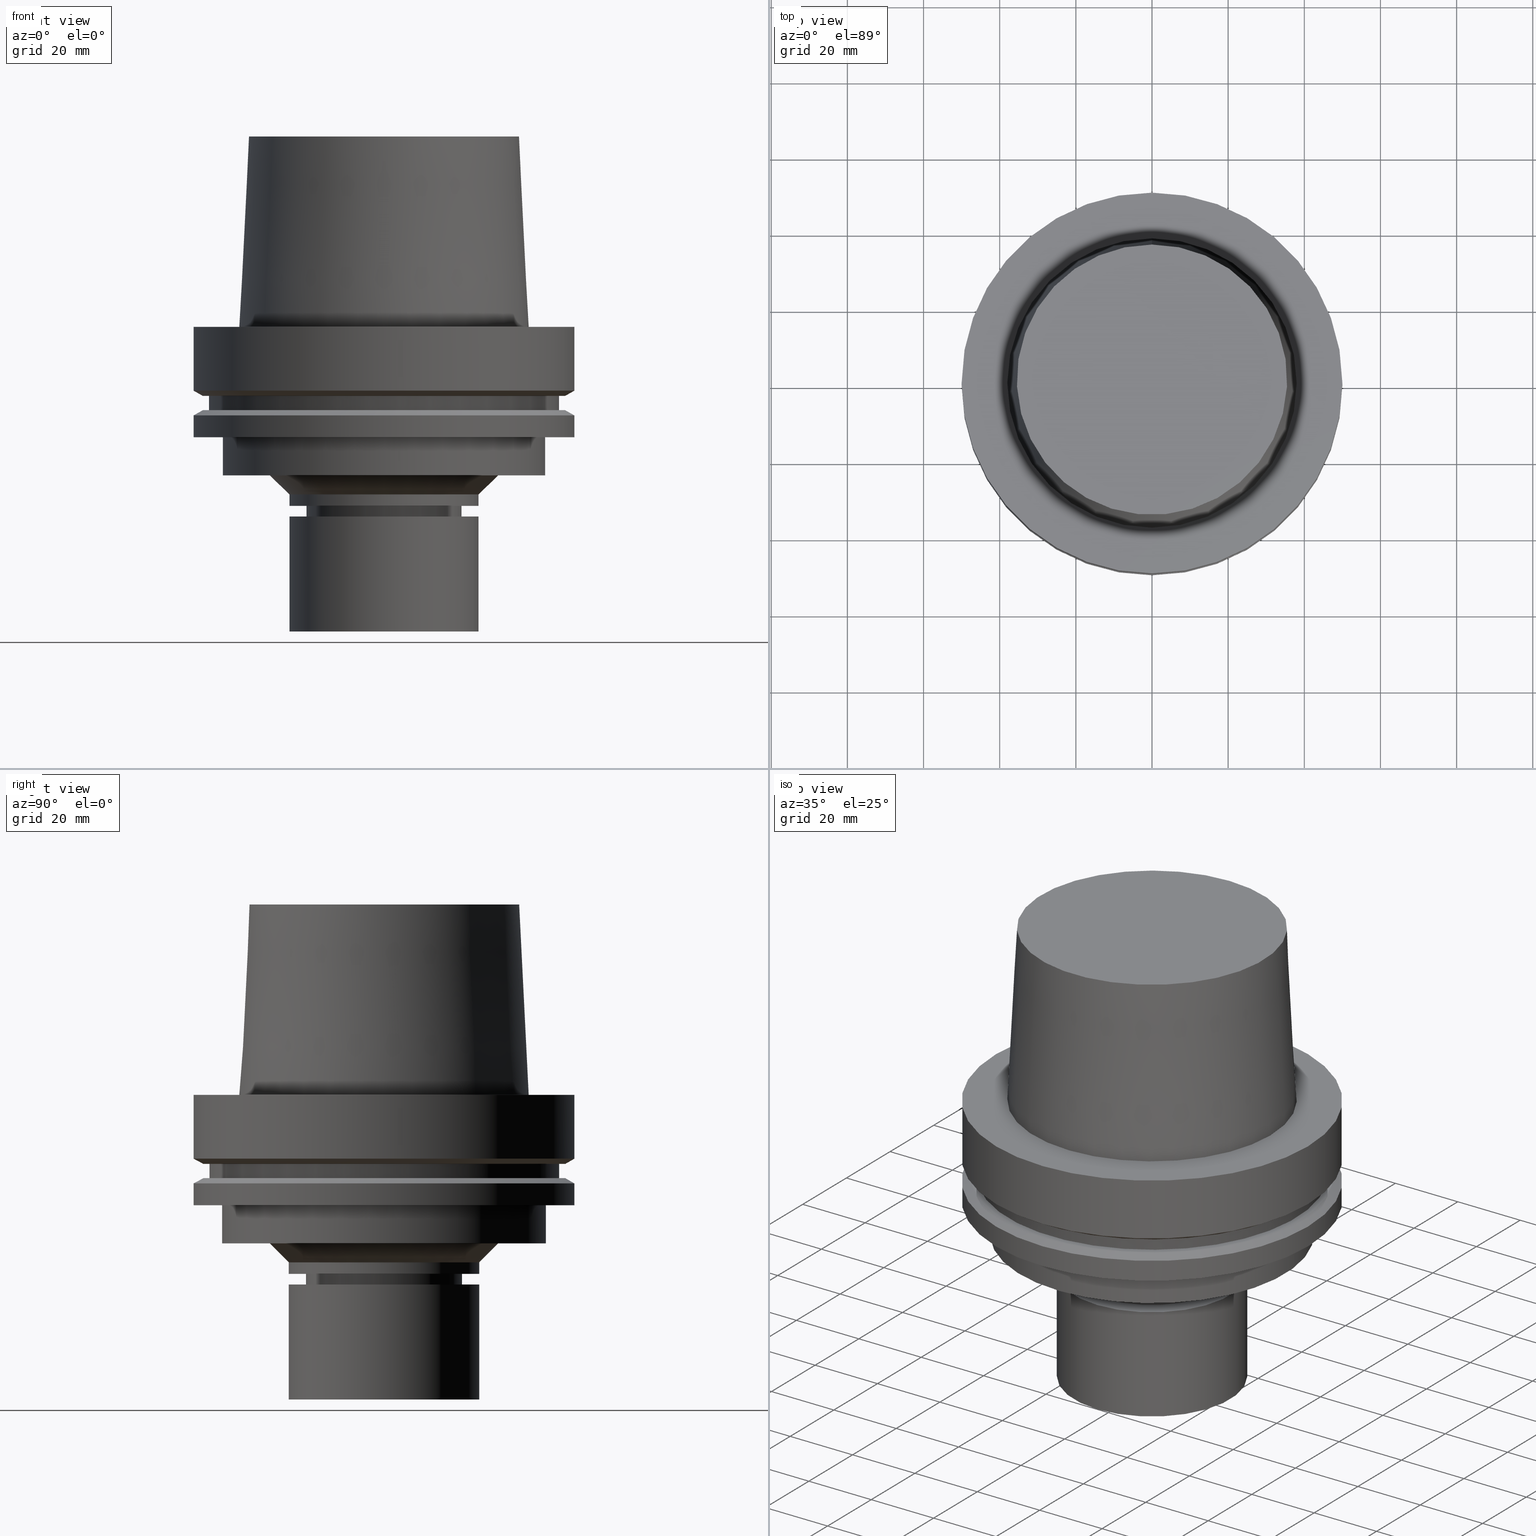
[diagram: canonical four-view strip — front | top / right | iso, engineering-drawing reading convention]
A machine part, canonical four-view strip (front | top / right | iso — engineering-drawing reading convention). The complete STEP part file that produces these views, byte-faithful:
ISO-10303-21;
HEADER;
FILE_DESCRIPTION((''),'1');
FILE_NAME('U:/Translate/02_3D_Field-HP\X2\FF71FF6FFF8CFF9F5916\X0\2013/02_Step_Field-HP\X2\FF71FF6FFF8CFF9F5916\X0\2013/HSK-A100-MEGAER32-80NL.stp','2016-06-22T02:47:27',(''),(''),'Spatial Interop R21 SP3','Kubotek KeyCreator 2011 V10.0.2 (22737)',' ');
FILE_SCHEMA(('automotive_design'));
ENDSEC;
DATA;
#1=MECHANICAL_DESIGN_GEOMETRIC_PRESENTATION_REPRESENTATION(' ',(#14,#15,#16,#17,#18,#19,#20,#21,#22,#23,#24,#25,#26,#27,#28,#29,#30,#31,#32,#33,#34,#35,#36,#37,#38,#39,#40,#41,#42,#43,#44,#45,#46,#47,#48,#49,#50,#51,#52,#53,#54,#55,#56,#57,#58,#59,#60,#61),#10);
#2=PRODUCT_DEFINITION_CONTEXT('',#62,'design');
#3=APPLICATION_PROTOCOL_DEFINITION('INTERNATIONAL STANDARD','automotive_design',1994,#62);
#4=PRODUCT_CATEGORY_RELATIONSHIP('NONE','NONE',#63,#64);
#5=SHAPE_DEFINITION_REPRESENTATION(#65,#66);
#6=PRODUCT_DEFINITION_CONTEXT('',#67,'design');
#7=APPLICATION_PROTOCOL_DEFINITION('INTERNATIONAL STANDARD','automotive_design',1994,#67);
#8=PRODUCT_CATEGORY_RELATIONSHIP('NONE','NONE',#68,#69);
#9=SHAPE_DEFINITION_REPRESENTATION(#70,#71);
#10= (GEOMETRIC_REPRESENTATION_CONTEXT(3)GLOBAL_UNCERTAINTY_ASSIGNED_CONTEXT((#74))GLOBAL_UNIT_ASSIGNED_CONTEXT((#76,#77,#78))REPRESENTATION_CONTEXT('NONE','WORKSPACE'));
#14=STYLED_ITEM('',(#80),#81);
#15=STYLED_ITEM('',(#82,#83),#84);
#16=STYLED_ITEM('',(#85,#86),#87);
#17=STYLED_ITEM('',(#88,#89),#90);
#18=STYLED_ITEM('',(#91),#92);
#19=STYLED_ITEM('',(#93,#94),#95);
#20=STYLED_ITEM('',(#96),#97);
#21=STYLED_ITEM('',(#98),#99);
#22=STYLED_ITEM('',(#100,#101),#102);
#23=STYLED_ITEM('',(#103,#104),#105);
#24=STYLED_ITEM('',(#106,#107),#108);
#25=STYLED_ITEM('',(#109,#110),#111);
#26=STYLED_ITEM('',(#112,#113),#114);
#27=STYLED_ITEM('',(#115),#116);
#28=STYLED_ITEM('',(#117),#118);
#29=STYLED_ITEM('',(#119),#120);
#30=STYLED_ITEM('',(#121,#122),#123);
#31=STYLED_ITEM('',(#124),#125);
#32=STYLED_ITEM('',(#126,#127),#128);
#33=STYLED_ITEM('',(#129,#130),#131);
#34=STYLED_ITEM('',(#132,#133),#134);
#35=STYLED_ITEM('',(#135,#136),#137);
#36=STYLED_ITEM('',(#138,#139),#140);
#37=STYLED_ITEM('',(#141,#142),#143);
#38=STYLED_ITEM('',(#144),#145);
#39=STYLED_ITEM('',(#146),#147);
#40=STYLED_ITEM('',(#148),#149);
#41=STYLED_ITEM('',(#150,#151),#152);
#42=STYLED_ITEM('',(#153),#154);
#43=STYLED_ITEM('',(#155,#156),#157);
#44=STYLED_ITEM('',(#158),#159);
#45=STYLED_ITEM('',(#160),#161);
#46=STYLED_ITEM('',(#162),#163);
#47=STYLED_ITEM('',(#164,#165),#166);
#48=STYLED_ITEM('',(#167),#168);
#49=STYLED_ITEM('',(#169),#170);
#50=STYLED_ITEM('',(#171,#172),#173);
#51=STYLED_ITEM('',(#174),#175);
#52=STYLED_ITEM('',(#176,#177),#178);
#53=STYLED_ITEM('',(#179,#180),#181);
#54=STYLED_ITEM('',(#182,#183),#184);
#55=STYLED_ITEM('',(#185,#186),#187);
#56=STYLED_ITEM('',(#188),#189);
#57=STYLED_ITEM('',(#190),#191);
#58=STYLED_ITEM('',(#192,#193),#194);
#59=STYLED_ITEM('',(#195,#196),#197);
#60=STYLED_ITEM('',(#198),#199);
#61=STYLED_ITEM('',(#200),#201);
#62=APPLICATION_CONTEXT(' ');
#63=PRODUCT_CATEGORY('part','NONE');
#64=PRODUCT_RELATED_PRODUCT_CATEGORY('detail',' ',(#202));
#65=PRODUCT_DEFINITION_SHAPE('NONE','NONE',#203);
#66=ADVANCED_BREP_SHAPE_REPRESENTATION('Unnamed[1]',(#108,#204),#10);
#67=APPLICATION_CONTEXT(' ');
#68=PRODUCT_CATEGORY('part','NONE');
#69=PRODUCT_RELATED_PRODUCT_CATEGORY('detail',' ',(#205));
#70=PRODUCT_DEFINITION_SHAPE('NONE','NONE',#206);
#71=ADVANCED_BREP_SHAPE_REPRESENTATION('Unnamed[1]',(#90,#207),#10);
#74=UNCERTAINTY_MEASURE_WITH_UNIT(LENGTH_MEASURE(1.0E-006),#76,'','');
#76= (CONVERSION_BASED_UNIT('MILLIMETRE',#210)LENGTH_UNIT()NAMED_UNIT(#213));
#77= (NAMED_UNIT(#215)PLANE_ANGLE_UNIT()SI_UNIT($,.RADIAN.));
#78= (NAMED_UNIT(#215)SOLID_ANGLE_UNIT()SI_UNIT($,.STERADIAN.));
#80=PRESENTATION_STYLE_ASSIGNMENT((#221));
#81=EDGE_CURVE('Unnamed[1]',#222,#222,#223,.T.);
#82=PRESENTATION_STYLE_ASSIGNMENT((#224));
#83=PRESENTATION_STYLE_ASSIGNMENT((#225));
#84=ADVANCED_FACE('Unnamed[1]',(#226),#227,.T.);
#85=PRESENTATION_STYLE_ASSIGNMENT((#228));
#86=PRESENTATION_STYLE_ASSIGNMENT((#229));
#87=ADVANCED_FACE('Unnamed[1]',(#230),#231,.T.);
#88=PRESENTATION_STYLE_ASSIGNMENT((#232));
#89=PRESENTATION_STYLE_ASSIGNMENT((#233));
#90=MANIFOLD_SOLID_BREP('Unnamed[1]',#234);
#91=PRESENTATION_STYLE_ASSIGNMENT((#235));
#92=EDGE_CURVE('Unnamed[1]',#236,#236,#237,.T.);
#93=PRESENTATION_STYLE_ASSIGNMENT((#238));
#94=PRESENTATION_STYLE_ASSIGNMENT((#239));
#95=ADVANCED_FACE('Unnamed[1]',(#240,#241),#242,.T.);
#96=PRESENTATION_STYLE_ASSIGNMENT((#243));
#97=EDGE_CURVE('Unnamed[1]',#244,#244,#245,.T.);
#98=PRESENTATION_STYLE_ASSIGNMENT((#246));
#99=EDGE_CURVE('Unnamed[1]',#247,#247,#248,.T.);
#100=PRESENTATION_STYLE_ASSIGNMENT((#249));
#101=PRESENTATION_STYLE_ASSIGNMENT((#250));
#102=ADVANCED_FACE('Unnamed[1]',(#251),#252,.T.);
#103=PRESENTATION_STYLE_ASSIGNMENT((#253));
#104=PRESENTATION_STYLE_ASSIGNMENT((#254));
#105=ADVANCED_FACE('Unnamed[1]',(#255,#256),#257,.T.);
#106=PRESENTATION_STYLE_ASSIGNMENT((#258));
#107=PRESENTATION_STYLE_ASSIGNMENT((#259));
#108=MANIFOLD_SOLID_BREP('Unnamed[1]',#260);
#109=PRESENTATION_STYLE_ASSIGNMENT((#261));
#110=PRESENTATION_STYLE_ASSIGNMENT((#262));
#111=ADVANCED_FACE('Unnamed[1]',(#263),#264,.T.);
#112=PRESENTATION_STYLE_ASSIGNMENT((#265));
#113=PRESENTATION_STYLE_ASSIGNMENT((#266));
#114=ADVANCED_FACE('Unnamed[1]',(#267,#268),#269,.T.);
#115=PRESENTATION_STYLE_ASSIGNMENT((#270));
#116=EDGE_CURVE('Unnamed[1]',#271,#271,#272,.T.);
#117=PRESENTATION_STYLE_ASSIGNMENT((#273));
#118=EDGE_CURVE('Unnamed[1]',#274,#274,#275,.T.);
#119=PRESENTATION_STYLE_ASSIGNMENT((#276));
#120=EDGE_CURVE('Unnamed[1]',#277,#277,#278,.T.);
#121=PRESENTATION_STYLE_ASSIGNMENT((#279));
#122=PRESENTATION_STYLE_ASSIGNMENT((#280));
#123=ADVANCED_FACE('Unnamed[1]',(#281,#282),#283,.T.);
#124=PRESENTATION_STYLE_ASSIGNMENT((#284));
#125=EDGE_CURVE('Unnamed[1]',#285,#285,#286,.T.);
#126=PRESENTATION_STYLE_ASSIGNMENT((#287));
#127=PRESENTATION_STYLE_ASSIGNMENT((#288));
#128=ADVANCED_FACE('Unnamed[1]',(#289,#290),#291,.T.);
#129=PRESENTATION_STYLE_ASSIGNMENT((#292));
#130=PRESENTATION_STYLE_ASSIGNMENT((#293));
#131=ADVANCED_FACE('Unnamed[1]',(#294,#295),#296,.T.);
#132=PRESENTATION_STYLE_ASSIGNMENT((#297));
#133=PRESENTATION_STYLE_ASSIGNMENT((#298));
#134=ADVANCED_FACE('Unnamed[1]',(#299,#300),#301,.T.);
#135=PRESENTATION_STYLE_ASSIGNMENT((#302));
#136=PRESENTATION_STYLE_ASSIGNMENT((#303));
#137=ADVANCED_FACE('Unnamed[1]',(#304,#305),#306,.T.);
#138=PRESENTATION_STYLE_ASSIGNMENT((#307));
#139=PRESENTATION_STYLE_ASSIGNMENT((#308));
#140=ADVANCED_FACE('Unnamed[1]',(#309,#310),#311,.T.);
#141=PRESENTATION_STYLE_ASSIGNMENT((#312));
#142=PRESENTATION_STYLE_ASSIGNMENT((#313));
#143=ADVANCED_FACE('Unnamed[1]',(#314,#315),#316,.T.);
#144=PRESENTATION_STYLE_ASSIGNMENT((#317));
#145=EDGE_CURVE('Unnamed[1]',#318,#318,#319,.T.);
#146=PRESENTATION_STYLE_ASSIGNMENT((#320));
#147=EDGE_CURVE('Unnamed[1]',#321,#321,#322,.T.);
#148=PRESENTATION_STYLE_ASSIGNMENT((#323));
#149=EDGE_CURVE('Unnamed[1]',#324,#324,#325,.T.);
#150=PRESENTATION_STYLE_ASSIGNMENT((#326));
#151=PRESENTATION_STYLE_ASSIGNMENT((#327));
#152=ADVANCED_FACE('Unnamed[1]',(#328,#329),#330,.T.);
#153=PRESENTATION_STYLE_ASSIGNMENT((#331));
#154=EDGE_CURVE('Unnamed[1]',#332,#332,#333,.T.);
#155=PRESENTATION_STYLE_ASSIGNMENT((#334));
#156=PRESENTATION_STYLE_ASSIGNMENT((#335));
#157=ADVANCED_FACE('Unnamed[1]',(#336,#337),#338,.T.);
#158=PRESENTATION_STYLE_ASSIGNMENT((#339));
#159=EDGE_CURVE('Unnamed[1]',#340,#340,#341,.T.);
#160=PRESENTATION_STYLE_ASSIGNMENT((#342));
#161=EDGE_CURVE('Unnamed[1]',#343,#343,#344,.T.);
#162=PRESENTATION_STYLE_ASSIGNMENT((#345));
#163=EDGE_CURVE('Unnamed[1]',#346,#346,#347,.T.);
#164=PRESENTATION_STYLE_ASSIGNMENT((#348));
#165=PRESENTATION_STYLE_ASSIGNMENT((#349));
#166=ADVANCED_FACE('Unnamed[1]',(#350,#351),#352,.T.);
#167=PRESENTATION_STYLE_ASSIGNMENT((#353));
#168=EDGE_CURVE('Unnamed[1]',#354,#354,#355,.T.);
#169=PRESENTATION_STYLE_ASSIGNMENT((#356));
#170=EDGE_CURVE('Unnamed[1]',#357,#357,#358,.T.);
#171=PRESENTATION_STYLE_ASSIGNMENT((#359));
#172=PRESENTATION_STYLE_ASSIGNMENT((#360));
#173=ADVANCED_FACE('Unnamed[1]',(#361,#362),#363,.T.);
#174=PRESENTATION_STYLE_ASSIGNMENT((#364));
#175=EDGE_CURVE('Unnamed[1]',#365,#365,#366,.T.);
#176=PRESENTATION_STYLE_ASSIGNMENT((#367));
#177=PRESENTATION_STYLE_ASSIGNMENT((#368));
#178=ADVANCED_FACE('Unnamed[1]',(#369,#370),#371,.T.);
#179=PRESENTATION_STYLE_ASSIGNMENT((#372));
#180=PRESENTATION_STYLE_ASSIGNMENT((#373));
#181=ADVANCED_FACE('Unnamed[1]',(#374,#375),#376,.T.);
#182=PRESENTATION_STYLE_ASSIGNMENT((#377));
#183=PRESENTATION_STYLE_ASSIGNMENT((#378));
#184=ADVANCED_FACE('Unnamed[1]',(#379,#380),#381,.T.);
#185=PRESENTATION_STYLE_ASSIGNMENT((#382));
#186=PRESENTATION_STYLE_ASSIGNMENT((#383));
#187=ADVANCED_FACE('Unnamed[1]',(#384,#385),#386,.T.);
#188=PRESENTATION_STYLE_ASSIGNMENT((#387));
#189=EDGE_CURVE('Unnamed[1]',#388,#388,#389,.T.);
#190=PRESENTATION_STYLE_ASSIGNMENT((#390));
#191=EDGE_CURVE('Unnamed[1]',#391,#391,#392,.T.);
#192=PRESENTATION_STYLE_ASSIGNMENT((#393));
#193=PRESENTATION_STYLE_ASSIGNMENT((#394));
#194=ADVANCED_FACE('Unnamed[1]',(#395,#396),#397,.T.);
#195=PRESENTATION_STYLE_ASSIGNMENT((#398));
#196=PRESENTATION_STYLE_ASSIGNMENT((#399));
#197=ADVANCED_FACE('Unnamed[1]',(#400,#401),#402,.T.);
#198=PRESENTATION_STYLE_ASSIGNMENT((#403));
#199=EDGE_CURVE('Unnamed[1]',#404,#404,#405,.T.);
#200=PRESENTATION_STYLE_ASSIGNMENT((#406));
#201=EDGE_CURVE('Unnamed[1]',#407,#407,#408,.T.);
#202=PRODUCT('Unnamed[1]','Unnamed[1]','PART-Unnamed[1]-DESC',(#409));
#203=PRODUCT_DEFINITION('NONE','NONE',#410,#2);
#204=AXIS2_PLACEMENT_3D('',#411,#412,#413);
#205=PRODUCT('Unnamed[1]','Unnamed[1]','PART-Unnamed[1]-DESC',(#414));
#206=PRODUCT_DEFINITION('NONE','NONE',#415,#6);
#207=AXIS2_PLACEMENT_3D('',#416,#417,#418);
#210=LENGTH_MEASURE_WITH_UNIT(LENGTH_MEASURE(1.0),#419);
#213=DIMENSIONAL_EXPONENTS(1.0,0.0,0.0,0.0,0.0,0.0,0.0);
#215=DIMENSIONAL_EXPONENTS(0.0,0.0,0.0,0.0,0.0,0.0,0.0);
#221=CURVE_STYLE('',#420,POSITIVE_LENGTH_MEASURE(1000.0),#421);
#222=VERTEX_POINT('',#422);
#223=CIRCLE('',#423,25.0);
#224=SURFACE_STYLE_USAGE(.BOTH.,#424);
#225=CURVE_STYLE('',#425,POSITIVE_LENGTH_MEASURE(1000.0),#426);
#226=FACE_OUTER_BOUND('',#427,.T.);
#227=PLANE('',#428);
#228=SURFACE_STYLE_USAGE(.BOTH.,#429);
#229=CURVE_STYLE('',#430,POSITIVE_LENGTH_MEASURE(1000.0),#431);
#230=FACE_OUTER_BOUND('',#432,.T.);
#231=PLANE('',#433);
#232=SURFACE_STYLE_USAGE(.BOTH.,#434);
#233=CURVE_STYLE('',#435,POSITIVE_LENGTH_MEASURE(1000.0),#436);
#234=CLOSED_SHELL('',(#111,#84,#173));
#235=CURVE_STYLE('',#437,POSITIVE_LENGTH_MEASURE(1000.0),#438);
#236=VERTEX_POINT('',#439);
#237=CIRCLE('',#440,18.8999999999997);
#238=SURFACE_STYLE_USAGE(.BOTH.,#441);
#239=CURVE_STYLE('',#442,POSITIVE_LENGTH_MEASURE(1000.0),#443);
#240=FACE_BOUND('',#444,.T.);
#241=FACE_BOUND('',#445,.T.);
#242=CYLINDRICAL_SURFACE('',#446,20.4999999999961);
#243=CURVE_STYLE('',#447,POSITIVE_LENGTH_MEASURE(1000.0),#448);
#244=VERTEX_POINT('',#449);
#245=CIRCLE('',#450,25.0);
#246=CURVE_STYLE('',#451,POSITIVE_LENGTH_MEASURE(1000.0),#452);
#247=VERTEX_POINT('',#453);
#248=CIRCLE('',#454,20.0000000000001);
#249=SURFACE_STYLE_USAGE(.BOTH.,#455);
#250=CURVE_STYLE('',#456,POSITIVE_LENGTH_MEASURE(1000.0),#457);
#251=FACE_OUTER_BOUND('',#458,.T.);
#252=PLANE('',#459);
#253=SURFACE_STYLE_USAGE(.BOTH.,#460);
#254=CURVE_STYLE('',#461,POSITIVE_LENGTH_MEASURE(1000.0),#462);
#255=FACE_BOUND('',#463,.T.);
#256=FACE_BOUND('',#464,.T.);
#257=CYLINDRICAL_SURFACE('',#465,50.0);
#258=SURFACE_STYLE_USAGE(.BOTH.,#466);
#259=CURVE_STYLE('',#467,POSITIVE_LENGTH_MEASURE(1000.0),#468);
#260=CLOSED_SHELL('',(#102,#128,#178,#114,#184,#152,#137,#157,#140,#105,#123,#194,#143,#131,#166,#134,#95,#181,#187,#197,#87));
#261=SURFACE_STYLE_USAGE(.BOTH.,#469);
#262=CURVE_STYLE('',#470,POSITIVE_LENGTH_MEASURE(1000.0),#471);
#263=FACE_OUTER_BOUND('',#472,.T.);
#264=PLANE('',#473);
#265=SURFACE_STYLE_USAGE(.BOTH.,#474);
#266=CURVE_STYLE('',#475,POSITIVE_LENGTH_MEASURE(1000.0),#476);
#267=FACE_BOUND('',#477,.T.);
#268=FACE_BOUND('',#478,.T.);
#269=CYLINDRICAL_SURFACE('',#479,50.0);
#270=CURVE_STYLE('',#480,POSITIVE_LENGTH_MEASURE(1000.0),#481);
#271=VERTEX_POINT('',#482);
#272=CIRCLE('',#483,46.0);
#273=CURVE_STYLE('',#484,POSITIVE_LENGTH_MEASURE(1000.0),#485);
#274=VERTEX_POINT('',#486);
#275=CIRCLE('',#487,37.9999999999349);
#276=CURVE_STYLE('',#488,POSITIVE_LENGTH_MEASURE(1000.0),#489);
#277=VERTEX_POINT('',#490);
#278=CIRCLE('',#491,20.0);
#279=SURFACE_STYLE_USAGE(.BOTH.,#492);
#280=CURVE_STYLE('',#493,POSITIVE_LENGTH_MEASURE(1000.0),#494);
#281=FACE_BOUND('',#495,.T.);
#282=FACE_OUTER_BOUND('',#496,.T.);
#283=PLANE('',#497);
#284=CURVE_STYLE('',#498,POSITIVE_LENGTH_MEASURE(1000.0),#499);
#285=VERTEX_POINT('',#500);
#286=CIRCLE('',#501,46.0);
#287=SURFACE_STYLE_USAGE(.BOTH.,#502);
#288=CURVE_STYLE('',#503,POSITIVE_LENGTH_MEASURE(1000.0),#504);
#289=FACE_BOUND('',#505,.T.);
#290=FACE_BOUND('',#506,.T.);
#291=CONICAL_SURFACE('',#507,36.7500000007484,0.0499583956894843);
#292=SURFACE_STYLE_USAGE(.BOTH.,#508);
#293=CURVE_STYLE('',#509,POSITIVE_LENGTH_MEASURE(1000.0),#510);
#294=FACE_BOUND('',#511,.T.);
#295=FACE_BOUND('',#512,.T.);
#296=CONICAL_SURFACE('',#513,27.5,0.785398163397448);
#297=SURFACE_STYLE_USAGE(.BOTH.,#514);
#298=CURVE_STYLE('',#515,POSITIVE_LENGTH_MEASURE(1000.0),#516);
#299=FACE_BOUND('',#517,.T.);
#300=FACE_OUTER_BOUND('',#518,.T.);
#301=PLANE('',#519);
#302=SURFACE_STYLE_USAGE(.BOTH.,#520);
#303=CURVE_STYLE('',#521,POSITIVE_LENGTH_MEASURE(1000.0),#522);
#304=FACE_BOUND('',#523,.T.);
#305=FACE_BOUND('',#524,.T.);
#306=CYLINDRICAL_SURFACE('',#525,46.0);
#307=SURFACE_STYLE_USAGE(.BOTH.,#526);
#308=CURVE_STYLE('',#527,POSITIVE_LENGTH_MEASURE(1000.0),#528);
#309=FACE_BOUND('',#529,.T.);
#310=FACE_BOUND('',#530,.T.);
#311=CONICAL_SURFACE('',#531,48.81129763,1.04719755328238);
#312=SURFACE_STYLE_USAGE(.BOTH.,#532);
#313=CURVE_STYLE('',#533,POSITIVE_LENGTH_MEASURE(1000.0),#534);
#314=FACE_BOUND('',#535,.T.);
#315=FACE_OUTER_BOUND('',#536,.T.);
#316=PLANE('',#537);
#317=CURVE_STYLE('',#538,POSITIVE_LENGTH_MEASURE(1000.0),#539);
#318=VERTEX_POINT('',#540);
#319=CIRCLE('',#541,35.5000000015618);
#320=CURVE_STYLE('',#542,POSITIVE_LENGTH_MEASURE(1000.0),#543);
#321=VERTEX_POINT('',#544);
#322=CIRCLE('',#545,47.62259526);
#323=CURVE_STYLE('',#546,POSITIVE_LENGTH_MEASURE(1000.0),#547);
#324=VERTEX_POINT('',#548);
#325=CIRCLE('',#549,50.0);
#326=SURFACE_STYLE_USAGE(.BOTH.,#550);
#327=CURVE_STYLE('',#551,POSITIVE_LENGTH_MEASURE(1000.0),#552);
#328=FACE_BOUND('',#553,.T.);
#329=FACE_OUTER_BOUND('',#554,.T.);
#330=PLANE('',#555);
#331=CURVE_STYLE('',#556,POSITIVE_LENGTH_MEASURE(1000.0),#557);
#332=VERTEX_POINT('',#558);
#333=CIRCLE('',#559,20.4999999999911);
#334=SURFACE_STYLE_USAGE(.BOTH.,#560);
#335=CURVE_STYLE('',#561,POSITIVE_LENGTH_MEASURE(1000.0),#562);
#336=FACE_OUTER_BOUND('',#563,.T.);
#337=FACE_BOUND('',#564,.T.);
#338=PLANE('',#565);
#339=CURVE_STYLE('',#566,POSITIVE_LENGTH_MEASURE(1000.0),#567);
#340=VERTEX_POINT('',#568);
#341=CIRCLE('',#569,47.62259526);
#342=CURVE_STYLE('',#570,POSITIVE_LENGTH_MEASURE(1000.0),#571);
#343=VERTEX_POINT('',#572);
#344=CIRCLE('',#573,20.5000000000012);
#345=CURVE_STYLE('',#574,POSITIVE_LENGTH_MEASURE(1000.0),#575);
#346=VERTEX_POINT('',#576);
#347=CIRCLE('',#577,50.0);
#348=SURFACE_STYLE_USAGE(.BOTH.,#578);
#349=CURVE_STYLE('',#579,POSITIVE_LENGTH_MEASURE(1000.0),#580);
#350=FACE_BOUND('',#581,.T.);
#351=FACE_BOUND('',#582,.T.);
#352=CYLINDRICAL_SURFACE('',#583,25.0);
#353=CURVE_STYLE('',#584,POSITIVE_LENGTH_MEASURE(1000.0),#585);
#354=VERTEX_POINT('',#586);
#355=CIRCLE('',#587,42.5);
#356=CURVE_STYLE('',#588,POSITIVE_LENGTH_MEASURE(1000.0),#589);
#357=VERTEX_POINT('',#590);
#358=CIRCLE('',#591,25.0);
#359=SURFACE_STYLE_USAGE(.BOTH.,#592);
#360=CURVE_STYLE('',#593,POSITIVE_LENGTH_MEASURE(1000.0),#594);
#361=FACE_BOUND('',#595,.T.);
#362=FACE_BOUND('',#596,.T.);
#363=CYLINDRICAL_SURFACE('',#597,25.0);
#364=CURVE_STYLE('',#598,POSITIVE_LENGTH_MEASURE(1000.0),#599);
#365=VERTEX_POINT('',#600);
#366=CIRCLE('',#601,42.5);
#367=SURFACE_STYLE_USAGE(.BOTH.,#602);
#368=CURVE_STYLE('',#603,POSITIVE_LENGTH_MEASURE(1000.0),#604);
#369=FACE_OUTER_BOUND('',#605,.T.);
#370=FACE_BOUND('',#606,.T.);
#371=PLANE('',#607);
#372=SURFACE_STYLE_USAGE(.BOTH.,#608);
#373=CURVE_STYLE('',#609,POSITIVE_LENGTH_MEASURE(1000.0),#610);
#374=FACE_BOUND('',#611,.T.);
#375=FACE_BOUND('',#612,.T.);
#376=CONICAL_SURFACE('',#613,20.2500000000006,0.766162649696587);
#377=SURFACE_STYLE_USAGE(.BOTH.,#614);
#378=CURVE_STYLE('',#615,POSITIVE_LENGTH_MEASURE(1000.0),#616);
#379=FACE_BOUND('',#617,.T.);
#380=FACE_BOUND('',#618,.T.);
#381=CONICAL_SURFACE('',#619,48.81129763,1.04719755328238);
#382=SURFACE_STYLE_USAGE(.BOTH.,#620);
#383=CURVE_STYLE('',#621,POSITIVE_LENGTH_MEASURE(1000.0),#622);
#384=FACE_BOUND('',#623,.T.);
#385=FACE_BOUND('',#624,.T.);
#386=CYLINDRICAL_SURFACE('',#625,20.0);
#387=CURVE_STYLE('',#626,POSITIVE_LENGTH_MEASURE(1000.0),#627);
#388=VERTEX_POINT('',#628);
#389=CIRCLE('',#629,25.0);
#390=CURVE_STYLE('',#630,POSITIVE_LENGTH_MEASURE(1000.0),#631);
#391=VERTEX_POINT('',#632);
#392=CIRCLE('',#633,50.0);
#393=SURFACE_STYLE_USAGE(.BOTH.,#634);
#394=CURVE_STYLE('',#635,POSITIVE_LENGTH_MEASURE(1000.0),#636);
#395=FACE_BOUND('',#637,.T.);
#396=FACE_BOUND('',#638,.T.);
#397=CYLINDRICAL_SURFACE('',#639,42.5);
#398=SURFACE_STYLE_USAGE(.BOTH.,#640);
#399=CURVE_STYLE('',#641,POSITIVE_LENGTH_MEASURE(1000.0),#642);
#400=FACE_BOUND('',#643,.T.);
#401=FACE_BOUND('',#644,.T.);
#402=CONICAL_SURFACE('',#645,19.4499999999999,0.523598775598222);
#403=CURVE_STYLE('',#646,POSITIVE_LENGTH_MEASURE(1000.0),#647);
#404=VERTEX_POINT('',#648);
#405=CIRCLE('',#649,50.0);
#406=CURVE_STYLE('',#650,POSITIVE_LENGTH_MEASURE(1000.0),#651);
#407=VERTEX_POINT('',#652);
#408=CIRCLE('',#653,30.0);
#409=PRODUCT_CONTEXT('',#62,'mechanical');
#410=PRODUCT_DEFINITION_FORMATION_WITH_SPECIFIED_SOURCE(' ','NONE',#202,.NOT_KNOWN.);
#411=CARTESIAN_POINT('',(0.0,0.0,0.0));
#412=DIRECTION('',(0.0,0.0,1.0));
#413=DIRECTION('',(1.0,0.0,0.0));
#414=PRODUCT_CONTEXT('',#67,'mechanical');
#415=PRODUCT_DEFINITION_FORMATION_WITH_SPECIFIED_SOURCE(' ','NONE',#205,.NOT_KNOWN.);
#416=CARTESIAN_POINT('',(0.0,0.0,0.0));
#417=DIRECTION('',(0.0,0.0,1.0));
#418=DIRECTION('',(1.0,0.0,0.0));
#419= (NAMED_UNIT(#213)LENGTH_UNIT()SI_UNIT(.MILLI.,.METRE.));
#420=DRAUGHTING_PRE_DEFINED_CURVE_FONT('continuous');
#421=COLOUR_RGB('',0.0,1.0,0.0);
#422=CARTESIAN_POINT('',(4.89858719658941E-015,25.0,-80.0));
#423=AXIS2_PLACEMENT_3D('',#655,#656,#657);
#424=SURFACE_SIDE_STYLE('',(#658));
#425=DRAUGHTING_PRE_DEFINED_CURVE_FONT('continuous');
#426=COLOUR_RGB('',0.0,1.0,0.0);
#427=EDGE_LOOP('',(#659));
#428=AXIS2_PLACEMENT_3D('',#660,#661,#662);
#429=SURFACE_SIDE_STYLE('',(#663));
#430=DRAUGHTING_PRE_DEFINED_CURVE_FONT('continuous');
#431=COLOUR_RGB('',0.0,1.0,0.0);
#432=EDGE_LOOP('',(#664));
#433=AXIS2_PLACEMENT_3D('',#665,#666,#667);
#434=SURFACE_SIDE_STYLE('',(#668));
#435=DRAUGHTING_PRE_DEFINED_CURVE_FONT('continuous');
#436=COLOUR_RGB('',0.0,1.0,0.0);
#437=DRAUGHTING_PRE_DEFINED_CURVE_FONT('continuous');
#438=COLOUR_RGB('',0.0,1.0,0.0);
#439=CARTESIAN_POINT('',(4.22503145705838E-015,18.8999999999997,-69.0000000000001));
#440=AXIS2_PLACEMENT_3D('',#669,#670,#671);
#441=SURFACE_SIDE_STYLE('',(#672));
#442=DRAUGHTING_PRE_DEFINED_CURVE_FONT('continuous');
#443=COLOUR_RGB('',0.0,1.0,0.0);
#444=EDGE_LOOP('',(#673));
#445=EDGE_LOOP('',(#674));
#446=AXIS2_PLACEMENT_3D('',#675,#676,#677);
#447=DRAUGHTING_PRE_DEFINED_CURVE_FONT('continuous');
#448=COLOUR_RGB('',0.0,1.0,0.0);
#449=CARTESIAN_POINT('',(2.87792962633957E-015,25.0,-47.0001575694037));
#450=AXIS2_PLACEMENT_3D('',#678,#679,#680);
#451=DRAUGHTING_PRE_DEFINED_CURVE_FONT('continuous');
#452=COLOUR_RGB('',0.0,1.0,0.0);
#453=CARTESIAN_POINT('',(4.10836818079858E-015,20.0000000000001,-67.0947441116734));
#454=AXIS2_PLACEMENT_3D('',#681,#682,#683);
#455=SURFACE_SIDE_STYLE('',(#684));
#456=DRAUGHTING_PRE_DEFINED_CURVE_FONT('continuous');
#457=COLOUR_RGB('',0.0,1.0,0.0);
#458=EDGE_LOOP('',(#685));
#459=AXIS2_PLACEMENT_3D('',#686,#687,#688);
#460=SURFACE_SIDE_STYLE('',(#689));
#461=DRAUGHTING_PRE_DEFINED_CURVE_FONT('continuous');
#462=COLOUR_RGB('',0.0,1.0,0.0);
#463=EDGE_LOOP('',(#690));
#464=EDGE_LOOP('',(#691));
#465=AXIS2_PLACEMENT_3D('',#692,#693,#694);
#466=SURFACE_SIDE_STYLE('',(#695));
#467=DRAUGHTING_PRE_DEFINED_CURVE_FONT('continuous');
#468=COLOUR_RGB('',0.0,1.0,0.0);
#469=SURFACE_SIDE_STYLE('',(#696));
#470=DRAUGHTING_PRE_DEFINED_CURVE_FONT('continuous');
#471=COLOUR_RGB('',0.0,1.0,0.0);
#472=EDGE_LOOP('',(#697));
#473=AXIS2_PLACEMENT_3D('',#698,#699,#700);
#474=SURFACE_SIDE_STYLE('',(#701));
#475=DRAUGHTING_PRE_DEFINED_CURVE_FONT('continuous');
#476=COLOUR_RGB('',0.0,1.0,0.0);
#477=EDGE_LOOP('',(#702));
#478=EDGE_LOOP('',(#703));
#479=AXIS2_PLACEMENT_3D('',#704,#705,#706);
#480=DRAUGHTING_PRE_DEFINED_CURVE_FONT('continuous');
#481=COLOUR_RGB('',0.0,1.0,0.0);
#482=CARTESIAN_POINT('',(1.10983616172729E-015,46.0,-18.125));
#483=AXIS2_PLACEMENT_3D('',#707,#708,#709);
#484=DRAUGHTING_PRE_DEFINED_CURVE_FONT('continuous');
#485=COLOUR_RGB('',0.0,1.0,0.0);
#486=CARTESIAN_POINT('',(-3.3636548776863E-032,37.9999999999349,-2.44634216324803E-015));
#487=AXIS2_PLACEMENT_3D('',#710,#711,#712);
#488=DRAUGHTING_PRE_DEFINED_CURVE_FONT('continuous');
#489=COLOUR_RGB('',0.0,1.0,0.0);
#490=CARTESIAN_POINT('',(3.29008083924487E-015,20.0,-53.7310976770699));
#491=AXIS2_PLACEMENT_3D('',#713,#714,#715);
#492=SURFACE_SIDE_STYLE('',(#716));
#493=DRAUGHTING_PRE_DEFINED_CURVE_FONT('continuous');
#494=COLOUR_RGB('',0.0,1.0,0.0);
#495=EDGE_LOOP('',(#717));
#496=EDGE_LOOP('',(#718));
#497=AXIS2_PLACEMENT_3D('',#719,#720,#721);
#498=DRAUGHTING_PRE_DEFINED_CURVE_FONT('continuous');
#499=COLOUR_RGB('',0.0,1.0,0.0);
#500=CARTESIAN_POINT('',(1.33945743656742E-015,46.0,-21.875));
#501=AXIS2_PLACEMENT_3D('',#722,#723,#724);
#502=SURFACE_SIDE_STYLE('',(#725));
#503=DRAUGHTING_PRE_DEFINED_CURVE_FONT('continuous');
#504=COLOUR_RGB('',0.0,1.0,0.0);
#505=EDGE_LOOP('',(#726));
#506=EDGE_LOOP('',(#727));
#507=AXIS2_PLACEMENT_3D('',#728,#729,#730);
#508=SURFACE_SIDE_STYLE('',(#731));
#509=DRAUGHTING_PRE_DEFINED_CURVE_FONT('continuous');
#510=COLOUR_RGB('',0.0,1.0,0.0);
#511=EDGE_LOOP('',(#732));
#512=EDGE_LOOP('',(#733));
#513=AXIS2_PLACEMENT_3D('',#734,#735,#736);
#514=SURFACE_SIDE_STYLE('',(#737));
#515=DRAUGHTING_PRE_DEFINED_CURVE_FONT('continuous');
#516=COLOUR_RGB('',0.0,1.0,0.0);
#517=EDGE_LOOP('',(#738));
#518=EDGE_LOOP('',(#739));
#519=AXIS2_PLACEMENT_3D('',#740,#741,#742);
#520=SURFACE_SIDE_STYLE('',(#743));
#521=DRAUGHTING_PRE_DEFINED_CURVE_FONT('continuous');
#522=COLOUR_RGB('',0.0,1.0,0.0);
#523=EDGE_LOOP('',(#744));
#524=EDGE_LOOP('',(#745));
#525=AXIS2_PLACEMENT_3D('',#746,#747,#748);
#526=SURFACE_SIDE_STYLE('',(#749));
#527=DRAUGHTING_PRE_DEFINED_CURVE_FONT('continuous');
#528=COLOUR_RGB('',0.0,1.0,0.0);
#529=EDGE_LOOP('',(#750));
#530=EDGE_LOOP('',(#751));
#531=AXIS2_PLACEMENT_3D('',#752,#753,#754);
#532=SURFACE_SIDE_STYLE('',(#755));
#533=DRAUGHTING_PRE_DEFINED_CURVE_FONT('continuous');
#534=COLOUR_RGB('',0.0,1.0,0.0);
#535=EDGE_LOOP('',(#756));
#536=EDGE_LOOP('',(#757));
#537=AXIS2_PLACEMENT_3D('',#758,#759,#760);
#538=DRAUGHTING_PRE_DEFINED_CURVE_FONT('continuous');
#539=COLOUR_RGB('',0.0,1.0,0.0);
#540=CARTESIAN_POINT('',(-3.06161699786838E-015,35.5000000015618,50.0));
#541=AXIS2_PLACEMENT_3D('',#761,#762,#763);
#542=DRAUGHTING_PRE_DEFINED_CURVE_FONT('continuous');
#543=COLOUR_RGB('',0.0,1.0,0.0);
#544=CARTESIAN_POINT('',(1.33945743656742E-015,47.62259526,-21.875));
#545=AXIS2_PLACEMENT_3D('',#764,#765,#766);
#546=DRAUGHTING_PRE_DEFINED_CURVE_FONT('continuous');
#547=COLOUR_RGB('',0.0,1.0,0.0);
#548=CARTESIAN_POINT('',(1.77573785876366E-015,50.0,-29.0));
#549=AXIS2_PLACEMENT_3D('',#767,#768,#769);
#550=SURFACE_SIDE_STYLE('',(#770));
#551=DRAUGHTING_PRE_DEFINED_CURVE_FONT('continuous');
#552=COLOUR_RGB('',0.0,1.0,0.0);
#553=EDGE_LOOP('',(#771));
#554=EDGE_LOOP('',(#772));
#555=AXIS2_PLACEMENT_3D('',#773,#774,#775);
#556=DRAUGHTING_PRE_DEFINED_CURVE_FONT('continuous');
#557=COLOUR_RGB('',0.0,1.0,0.0);
#558=CARTESIAN_POINT('',(2.8779296263396E-015,20.4999999999911,-47.0001575694042));
#559=AXIS2_PLACEMENT_3D('',#776,#777,#778);
#560=SURFACE_SIDE_STYLE('',(#779));
#561=DRAUGHTING_PRE_DEFINED_CURVE_FONT('continuous');
#562=COLOUR_RGB('',0.0,1.0,0.0);
#563=EDGE_LOOP('',(#780));
#564=EDGE_LOOP('',(#781));
#565=AXIS2_PLACEMENT_3D('',#782,#783,#784);
#566=DRAUGHTING_PRE_DEFINED_CURVE_FONT('continuous');
#567=COLOUR_RGB('',0.0,1.0,0.0);
#568=CARTESIAN_POINT('',(1.10983616172729E-015,47.62259526,-18.125));
#569=AXIS2_PLACEMENT_3D('',#785,#786,#787);
#570=DRAUGHTING_PRE_DEFINED_CURVE_FONT('continuous');
#571=COLOUR_RGB('',0.0,1.0,0.0);
#572=CARTESIAN_POINT('',(3.25826358208323E-015,20.5000000000012,-53.211482434801));
#573=AXIS2_PLACEMENT_3D('',#788,#789,#790);
#574=DRAUGHTING_PRE_DEFINED_CURVE_FONT('continuous');
#575=COLOUR_RGB('',0.0,1.0,0.0);
#576=CARTESIAN_POINT('',(1.0257889421431E-015,50.0,-16.75240474));
#577=AXIS2_PLACEMENT_3D('',#791,#792,#793);
#578=SURFACE_SIDE_STYLE('',(#794));
#579=DRAUGHTING_PRE_DEFINED_CURVE_FONT('continuous');
#580=COLOUR_RGB('',0.0,1.0,0.0);
#581=EDGE_LOOP('',(#795));
#582=EDGE_LOOP('',(#796));
#583=AXIS2_PLACEMENT_3D('',#797,#798,#799);
#584=DRAUGHTING_PRE_DEFINED_CURVE_FONT('continuous');
#585=COLOUR_RGB('',0.0,1.0,0.0);
#586=CARTESIAN_POINT('',(2.38806125833734E-015,42.5,-39.0));
#587=AXIS2_PLACEMENT_3D('',#800,#801,#802);
#588=DRAUGHTING_PRE_DEFINED_CURVE_FONT('continuous');
#589=COLOUR_RGB('',0.0,1.0,0.0);
#590=CARTESIAN_POINT('',(3.04937052987691E-015,25.0,-49.8));
#591=AXIS2_PLACEMENT_3D('',#803,#804,#805);
#592=SURFACE_SIDE_STYLE('',(#806));
#593=DRAUGHTING_PRE_DEFINED_CURVE_FONT('continuous');
#594=COLOUR_RGB('',0.0,1.0,0.0);
#595=EDGE_LOOP('',(#807));
#596=EDGE_LOOP('',(#808));
#597=AXIS2_PLACEMENT_3D('',#809,#810,#811);
#598=DRAUGHTING_PRE_DEFINED_CURVE_FONT('continuous');
#599=COLOUR_RGB('',0.0,1.0,0.0);
#600=CARTESIAN_POINT('',(1.77573785876366E-015,42.5,-29.0));
#601=AXIS2_PLACEMENT_3D('',#812,#813,#814);
#602=SURFACE_SIDE_STYLE('',(#815));
#603=DRAUGHTING_PRE_DEFINED_CURVE_FONT('continuous');
#604=COLOUR_RGB('',0.0,1.0,0.0);
#605=EDGE_LOOP('',(#816));
#606=EDGE_LOOP('',(#817));
#607=AXIS2_PLACEMENT_3D('',#818,#819,#820);
#608=SURFACE_SIDE_STYLE('',(#821));
#609=DRAUGHTING_PRE_DEFINED_CURVE_FONT('continuous');
#610=COLOUR_RGB('',0.0,1.0,0.0);
#611=EDGE_LOOP('',(#822));
#612=EDGE_LOOP('',(#823));
#613=AXIS2_PLACEMENT_3D('',#824,#825,#826);
#614=SURFACE_SIDE_STYLE('',(#827));
#615=DRAUGHTING_PRE_DEFINED_CURVE_FONT('continuous');
#616=COLOUR_RGB('',0.0,1.0,0.0);
#617=EDGE_LOOP('',(#828));
#618=EDGE_LOOP('',(#829));
#619=AXIS2_PLACEMENT_3D('',#830,#831,#832);
#620=SURFACE_SIDE_STYLE('',(#833));
#621=DRAUGHTING_PRE_DEFINED_CURVE_FONT('continuous');
#622=COLOUR_RGB('',0.0,1.0,0.0);
#623=EDGE_LOOP('',(#834));
#624=EDGE_LOOP('',(#835));
#625=AXIS2_PLACEMENT_3D('',#836,#837,#838);
#626=DRAUGHTING_PRE_DEFINED_CURVE_FONT('continuous');
#627=COLOUR_RGB('',0.0,1.0,0.0);
#628=CARTESIAN_POINT('',(2.69422295812418E-015,25.0,-44.0));
#629=AXIS2_PLACEMENT_3D('',#839,#840,#841);
#630=DRAUGHTING_PRE_DEFINED_CURVE_FONT('continuous');
#631=COLOUR_RGB('',0.0,1.0,0.0);
#632=CARTESIAN_POINT('',(1.42350465615161E-015,50.0,-23.24759526));
#633=AXIS2_PLACEMENT_3D('',#842,#843,#844);
#634=SURFACE_SIDE_STYLE('',(#845));
#635=DRAUGHTING_PRE_DEFINED_CURVE_FONT('continuous');
#636=COLOUR_RGB('',0.0,1.0,0.0);
#637=EDGE_LOOP('',(#846));
#638=EDGE_LOOP('',(#847));
#639=AXIS2_PLACEMENT_3D('',#848,#849,#850);
#640=SURFACE_SIDE_STYLE('',(#851));
#641=DRAUGHTING_PRE_DEFINED_CURVE_FONT('continuous');
#642=COLOUR_RGB('',0.0,1.0,0.0);
#643=EDGE_LOOP('',(#852));
#644=EDGE_LOOP('',(#853));
#645=AXIS2_PLACEMENT_3D('',#854,#855,#856);
#646=DRAUGHTING_PRE_DEFINED_CURVE_FONT('continuous');
#647=COLOUR_RGB('',0.0,1.0,0.0);
#648=CARTESIAN_POINT('',(-1.81547968506605E-031,50.0,-9.76766004263236E-016));
#649=AXIS2_PLACEMENT_3D('',#857,#858,#859);
#650=DRAUGHTING_PRE_DEFINED_CURVE_FONT('continuous');
#651=COLOUR_RGB('',0.0,1.0,0.0);
#652=CARTESIAN_POINT('',(2.38806125833734E-015,30.0,-39.0));
#653=AXIS2_PLACEMENT_3D('',#860,#861,#862);
#655=CARTESIAN_POINT('',(4.89858719658941E-015,9.79717439317882E-015,-80.0));
#656=DIRECTION('',(6.12323399573677E-017,1.22464679914735E-016,-1.0));
#657=DIRECTION('',(-1.23259516440783E-032,1.0,1.22464679914735E-016));
#658=SURFACE_STYLE_FILL_AREA(#863);
#659=ORIENTED_EDGE('',*,*,#170,.F.);
#660=CARTESIAN_POINT('',(3.04937052987691E-015,12.5,-49.8));
#661=DIRECTION('',(-6.12323399573677E-017,-1.22464679914735E-016,1.0));
#662=DIRECTION('',(1.23259516440783E-032,-1.0,-1.22464679914735E-016));
#663=SURFACE_STYLE_FILL_AREA(#864);
#664=ORIENTED_EDGE('',*,*,#92,.T.);
#665=CARTESIAN_POINT('',(4.22503145705837E-015,9.44999999999986,-69.0));
#666=DIRECTION('',(6.12323399573677E-017,-1.56673738925322E-014,-1.0));
#667=DIRECTION('',(9.54522811695948E-031,1.0,-1.56673738925322E-014));
#668=SURFACE_STYLE_FILL_AREA(#865);
#669=CARTESIAN_POINT('',(4.22503145705838E-015,8.45006291411675E-015,-69.0000000000001));
#670=DIRECTION('',(6.12323399573677E-017,1.22464679914735E-016,-1.0));
#671=DIRECTION('',(-1.23259516440783E-032,1.0,1.22464679914735E-016));
#672=SURFACE_STYLE_FILL_AREA(#866);
#673=ORIENTED_EDGE('',*,*,#161,.F.);
#674=ORIENTED_EDGE('',*,*,#154,.T.);
#675=CARTESIAN_POINT('',(3.06809660421142E-015,6.13619320842284E-015,-50.1058200021026));
#676=DIRECTION('',(6.12323399573676E-017,1.22464679914735E-016,-1.0));
#677=DIRECTION('',(-1.23259516440783E-032,1.0,1.22464679914735E-016));
#678=CARTESIAN_POINT('',(2.87792962633957E-015,5.75585925267915E-015,-47.0001575694037));
#679=DIRECTION('',(6.12323399573677E-017,1.22464679914735E-016,-1.0));
#680=DIRECTION('',(-1.23259516440783E-032,1.0,1.22464679914735E-016));
#681=CARTESIAN_POINT('',(4.10836818079858E-015,8.21673636159715E-015,-67.0947441116734));
#682=DIRECTION('',(6.12323399573677E-017,1.22464679914735E-016,-1.0));
#683=DIRECTION('',(-1.23259516440783E-032,1.0,1.22464679914735E-016));
#684=SURFACE_STYLE_FILL_AREA(#867);
#685=ORIENTED_EDGE('',*,*,#145,.F.);
#686=CARTESIAN_POINT('',(-3.06161699786838E-015,17.7500000007809,50.0));
#687=DIRECTION('',(-6.12323399573677E-017,-1.22464679914735E-016,1.0));
#688=DIRECTION('',(1.23259516440783E-032,-1.0,-1.22464679914735E-016));
#689=SURFACE_STYLE_FILL_AREA(#868);
#690=ORIENTED_EDGE('',*,*,#149,.F.);
#691=ORIENTED_EDGE('',*,*,#191,.T.);
#692=CARTESIAN_POINT('',(1.59962125745764E-015,3.19924251491527E-015,-26.12379763));
#693=DIRECTION('',(6.12323399573677E-017,1.22464679914735E-016,-1.0));
#694=DIRECTION('',(-1.23259516440783E-032,1.0,1.22464679914735E-016));
#695=SURFACE_STYLE_FILL_AREA(#869);
#696=SURFACE_STYLE_FILL_AREA(#870);
#697=ORIENTED_EDGE('',*,*,#81,.T.);
#698=CARTESIAN_POINT('',(4.89858719658941E-015,12.5,-80.0));
#699=DIRECTION('',(6.12323399573677E-017,1.22464679914735E-016,-1.0));
#700=DIRECTION('',(-1.23259516440783E-032,1.0,1.22464679914735E-016));
#701=SURFACE_STYLE_FILL_AREA(#871);
#702=ORIENTED_EDGE('',*,*,#163,.F.);
#703=ORIENTED_EDGE('',*,*,#199,.T.);
#704=CARTESIAN_POINT('',(5.12894471071548E-016,1.0257889421431E-015,-8.37620236999999));
#705=DIRECTION('',(6.12323399573677E-017,1.22464679914735E-016,-1.0));
#706=DIRECTION('',(-1.23259516440783E-032,1.0,1.22464679914735E-016));
#707=CARTESIAN_POINT('',(1.10983616172729E-015,2.21967232345458E-015,-18.125));
#708=DIRECTION('',(6.12323399573677E-017,1.22464679914735E-016,-1.0));
#709=DIRECTION('',(-1.23259516440783E-032,1.0,1.22464679914735E-016));
#710=CARTESIAN_POINT('',(0.0,0.0,0.0));
#711=DIRECTION('',(6.12323399573677E-017,1.22464679914735E-016,-1.0));
#712=DIRECTION('',(-1.23259516440783E-032,1.0,1.22464679914735E-016));
#713=CARTESIAN_POINT('',(3.29008083924487E-015,6.58016167848975E-015,-53.7310976770699));
#714=DIRECTION('',(6.12323399573677E-017,1.22464679914735E-016,-1.0));
#715=DIRECTION('',(-1.23259516440783E-032,1.0,1.22464679914735E-016));
#716=SURFACE_STYLE_FILL_AREA(#872);
#717=ORIENTED_EDGE('',*,*,#175,.F.);
#718=ORIENTED_EDGE('',*,*,#149,.T.);
#719=CARTESIAN_POINT('',(1.77573785876366E-015,46.25,-29.0));
#720=DIRECTION('',(6.12323399573677E-017,1.22464679914735E-016,-1.0));
#721=DIRECTION('',(-1.23259516440783E-032,1.0,1.22464679914735E-016));
#722=CARTESIAN_POINT('',(1.33945743656742E-015,2.67891487313484E-015,-21.875));
#723=DIRECTION('',(6.12323399573677E-017,1.22464679914735E-016,-1.0));
#724=DIRECTION('',(-1.23259516440783E-032,1.0,1.22464679914735E-016));
#725=SURFACE_STYLE_FILL_AREA(#873);
#726=ORIENTED_EDGE('',*,*,#118,.F.);
#727=ORIENTED_EDGE('',*,*,#145,.T.);
#728=CARTESIAN_POINT('',(-1.53080849893419E-015,-3.06161699786838E-015,25.0));
#729=DIRECTION('',(6.12323399573676E-017,1.22464679914735E-016,-1.0));
#730=DIRECTION('',(-1.23259516440783E-032,1.0,1.22464679914735E-016));
#731=SURFACE_STYLE_FILL_AREA(#874);
#732=ORIENTED_EDGE('',*,*,#189,.F.);
#733=ORIENTED_EDGE('',*,*,#201,.T.);
#734=CARTESIAN_POINT('',(2.54114210823076E-015,5.08228421646152E-015,-41.5));
#735=DIRECTION('',(-6.12323399573677E-017,-1.22464679914735E-016,1.0));
#736=DIRECTION('',(-1.23259516440783E-032,1.0,1.22464679914735E-016));
#737=SURFACE_STYLE_FILL_AREA(#875);
#738=ORIENTED_EDGE('',*,*,#154,.F.);
#739=ORIENTED_EDGE('',*,*,#97,.T.);
#740=CARTESIAN_POINT('',(2.87792962633959E-015,22.7499999999955,-47.000157569404));
#741=DIRECTION('',(6.12323399573677E-017,1.05914383115098E-013,-1.0));
#742=DIRECTION('',(-6.49021266600931E-030,1.0,1.05914383115098E-013));
#743=SURFACE_STYLE_FILL_AREA(#876);
#744=ORIENTED_EDGE('',*,*,#125,.F.);
#745=ORIENTED_EDGE('',*,*,#116,.T.);
#746=CARTESIAN_POINT('',(1.22464679914735E-015,2.44929359829471E-015,-20.0));
#747=DIRECTION('',(6.12323399573677E-017,1.22464679914735E-016,-1.0));
#748=DIRECTION('',(-1.23259516440783E-032,1.0,1.22464679914735E-016));
#749=SURFACE_STYLE_FILL_AREA(#877);
#750=ORIENTED_EDGE('',*,*,#191,.F.);
#751=ORIENTED_EDGE('',*,*,#147,.T.);
#752=CARTESIAN_POINT('',(1.38148104635951E-015,2.76296209271903E-015,-22.56129763));
#753=DIRECTION('',(6.12323399573677E-017,1.22464679914735E-016,-1.0));
#754=DIRECTION('',(-1.23259516440783E-032,1.0,1.22464679914735E-016));
#755=SURFACE_STYLE_FILL_AREA(#878);
#756=ORIENTED_EDGE('',*,*,#201,.F.);
#757=ORIENTED_EDGE('',*,*,#168,.T.);
#758=CARTESIAN_POINT('',(2.38806125833734E-015,36.25,-39.0));
#759=DIRECTION('',(6.12323399573677E-017,1.22464679914735E-016,-1.0));
#760=DIRECTION('',(-1.23259516440783E-032,1.0,1.22464679914735E-016));
#761=CARTESIAN_POINT('',(-3.06161699786838E-015,-6.12323399573676E-015,50.0));
#762=DIRECTION('',(6.12323399573677E-017,1.22464679914735E-016,-1.0));
#763=DIRECTION('',(-1.23259516440783E-032,1.0,1.22464679914735E-016));
#764=CARTESIAN_POINT('',(1.33945743656742E-015,2.67891487313484E-015,-21.875));
#765=DIRECTION('',(6.12323399573676E-017,1.22464679914735E-016,-1.0));
#766=DIRECTION('',(-1.23259516440783E-032,1.0,1.22464679914735E-016));
#767=CARTESIAN_POINT('',(1.77573785876366E-015,3.55147571752733E-015,-29.0));
#768=DIRECTION('',(6.12323399573677E-017,1.22464679914735E-016,-1.0));
#769=DIRECTION('',(-1.23259516440783E-032,1.0,1.22464679914735E-016));
#770=SURFACE_STYLE_FILL_AREA(#879);
#771=ORIENTED_EDGE('',*,*,#116,.F.);
#772=ORIENTED_EDGE('',*,*,#159,.T.);
#773=CARTESIAN_POINT('',(1.10983616172729E-015,46.81129763,-18.125));
#774=DIRECTION('',(6.12323399573677E-017,1.22464679914735E-016,-1.0));
#775=DIRECTION('',(-1.23259516440783E-032,1.0,1.22464679914735E-016));
#776=CARTESIAN_POINT('',(2.8779296263396E-015,5.75585925267921E-015,-47.0001575694042));
#777=DIRECTION('',(6.12323399573677E-017,1.22464679914735E-016,-1.0));
#778=DIRECTION('',(-1.23259516440783E-032,1.0,1.22464679914735E-016));
#779=SURFACE_STYLE_FILL_AREA(#880);
#780=ORIENTED_EDGE('',*,*,#147,.F.);
#781=ORIENTED_EDGE('',*,*,#125,.T.);
#782=CARTESIAN_POINT('',(1.33945743656742E-015,46.81129763,-21.875));
#783=DIRECTION('',(-6.12323399573677E-017,-1.22464679914735E-016,1.0));
#784=DIRECTION('',(1.23259516440783E-032,-1.0,-1.22464679914735E-016));
#785=CARTESIAN_POINT('',(1.10983616172729E-015,2.21967232345458E-015,-18.125));
#786=DIRECTION('',(6.12323399573676E-017,1.22464679914735E-016,-1.0));
#787=DIRECTION('',(-1.23259516440783E-032,1.0,1.22464679914735E-016));
#788=CARTESIAN_POINT('',(3.25826358208323E-015,6.51652716416646E-015,-53.211482434801));
#789=DIRECTION('',(6.12323399573677E-017,1.22464679914735E-016,-1.0));
#790=DIRECTION('',(-1.23259516440783E-032,1.0,1.22464679914735E-016));
#791=CARTESIAN_POINT('',(1.0257889421431E-015,2.05157788428619E-015,-16.75240474));
#792=DIRECTION('',(6.12323399573677E-017,1.22464679914735E-016,-1.0));
#793=DIRECTION('',(-1.23259516440783E-032,1.0,1.22464679914735E-016));
#794=SURFACE_STYLE_FILL_AREA(#881);
#795=ORIENTED_EDGE('',*,*,#97,.F.);
#796=ORIENTED_EDGE('',*,*,#189,.T.);
#797=CARTESIAN_POINT('',(2.78607629223188E-015,5.57215258446375E-015,-45.5000787847019));
#798=DIRECTION('',(6.12323399573677E-017,1.22464679914735E-016,-1.0));
#799=DIRECTION('',(-1.23259516440783E-032,1.0,1.22464679914735E-016));
#800=CARTESIAN_POINT('',(2.38806125833734E-015,4.77612251667468E-015,-39.0));
#801=DIRECTION('',(6.12323399573677E-017,1.22464679914735E-016,-1.0));
#802=DIRECTION('',(-1.23259516440783E-032,1.0,1.22464679914735E-016));
#803=CARTESIAN_POINT('',(3.04937052987691E-015,6.09874105975382E-015,-49.8));
#804=DIRECTION('',(6.12323399573677E-017,1.22464679914735E-016,-1.0));
#805=DIRECTION('',(-1.23259516440783E-032,1.0,1.22464679914735E-016));
#806=SURFACE_STYLE_FILL_AREA(#882);
#807=ORIENTED_EDGE('',*,*,#81,.F.);
#808=ORIENTED_EDGE('',*,*,#170,.T.);
#809=CARTESIAN_POINT('',(3.97397886323316E-015,7.94795772646632E-015,-64.9));
#810=DIRECTION('',(6.12323399573677E-017,1.22464679914735E-016,-1.0));
#811=DIRECTION('',(-1.23259516440783E-032,1.0,1.22464679914735E-016));
#812=CARTESIAN_POINT('',(1.77573785876366E-015,3.55147571752733E-015,-29.0));
#813=DIRECTION('',(6.12323399573677E-017,1.22464679914735E-016,-1.0));
#814=DIRECTION('',(-1.23259516440783E-032,1.0,1.22464679914735E-016));
#815=SURFACE_STYLE_FILL_AREA(#883);
#816=ORIENTED_EDGE('',*,*,#199,.F.);
#817=ORIENTED_EDGE('',*,*,#118,.T.);
#818=CARTESIAN_POINT('',(-1.07592258641734E-031,43.9999999999675,-1.71155408375563E-015));
#819=DIRECTION('',(-6.12323399573677E-017,-1.22464679914735E-016,1.0));
#820=DIRECTION('',(1.23259516440783E-032,-1.0,-1.22464679914735E-016));
#821=SURFACE_STYLE_FILL_AREA(#884);
#822=ORIENTED_EDGE('',*,*,#120,.F.);
#823=ORIENTED_EDGE('',*,*,#161,.T.);
#824=CARTESIAN_POINT('',(3.27417221066405E-015,6.54834442132811E-015,-53.4712900559355));
#825=DIRECTION('',(-6.12323399573677E-017,-1.22464679914735E-016,1.0));
#826=DIRECTION('',(-1.23259516440783E-032,1.0,1.22464679914735E-016));
#827=SURFACE_STYLE_FILL_AREA(#885);
#828=ORIENTED_EDGE('',*,*,#159,.F.);
#829=ORIENTED_EDGE('',*,*,#163,.T.);
#830=CARTESIAN_POINT('',(1.06781255193519E-015,2.13562510387039E-015,-17.43870237));
#831=DIRECTION('',(-6.12323399573677E-017,-1.22464679914735E-016,1.0));
#832=DIRECTION('',(-1.23259516440783E-032,1.0,1.22464679914735E-016));
#833=SURFACE_STYLE_FILL_AREA(#886);
#834=ORIENTED_EDGE('',*,*,#99,.F.);
#835=ORIENTED_EDGE('',*,*,#120,.T.);
#836=CARTESIAN_POINT('',(3.69922451002173E-015,7.39844902004345E-015,-60.4129208943717));
#837=DIRECTION('',(6.12323399573677E-017,1.22464679914735E-016,-1.0));
#838=DIRECTION('',(-1.23259516440783E-032,1.0,1.22464679914735E-016));
#839=CARTESIAN_POINT('',(2.69422295812418E-015,5.38844591624835E-015,-44.0));
#840=DIRECTION('',(6.12323399573677E-017,1.22464679914735E-016,-1.0));
#841=DIRECTION('',(-1.23259516440783E-032,1.0,1.22464679914735E-016));
#842=CARTESIAN_POINT('',(1.42350465615161E-015,2.84700931230322E-015,-23.24759526));
#843=DIRECTION('',(6.12323399573677E-017,1.22464679914735E-016,-1.0));
#844=DIRECTION('',(-1.23259516440783E-032,1.0,1.22464679914735E-016));
#845=SURFACE_STYLE_FILL_AREA(#887);
#846=ORIENTED_EDGE('',*,*,#168,.F.);
#847=ORIENTED_EDGE('',*,*,#175,.T.);
#848=CARTESIAN_POINT('',(2.0818995585505E-015,4.163799117101E-015,-34.0));
#849=DIRECTION('',(6.12323399573677E-017,1.22464679914735E-016,-1.0));
#850=DIRECTION('',(-1.23259516440783E-032,1.0,1.22464679914735E-016));
#851=SURFACE_STYLE_FILL_AREA(#888);
#852=ORIENTED_EDGE('',*,*,#92,.F.);
#853=ORIENTED_EDGE('',*,*,#99,.T.);
#854=CARTESIAN_POINT('',(4.16669981892848E-015,8.33339963785695E-015,-68.0473720558368));
#855=DIRECTION('',(-6.12323399573677E-017,-1.22464679914735E-016,1.0));
#856=DIRECTION('',(-1.23259516440783E-032,1.0,1.22464679914735E-016));
#857=CARTESIAN_POINT('',(0.0,0.0,0.0));
#858=DIRECTION('',(6.12323399573677E-017,1.22464679914735E-016,-1.0));
#859=DIRECTION('',(-1.23259516440783E-032,1.0,1.22464679914735E-016));
#860=CARTESIAN_POINT('',(2.38806125833734E-015,4.77612251667468E-015,-39.0));
#861=DIRECTION('',(6.12323399573677E-017,1.22464679914735E-016,-1.0));
#862=DIRECTION('',(-1.23259516440783E-032,1.0,1.22464679914735E-016));
#863=FILL_AREA_STYLE('',(#889));
#864=FILL_AREA_STYLE('',(#890));
#865=FILL_AREA_STYLE('',(#891));
#866=FILL_AREA_STYLE('',(#892));
#867=FILL_AREA_STYLE('',(#893));
#868=FILL_AREA_STYLE('',(#894));
#869=FILL_AREA_STYLE('',(#895));
#870=FILL_AREA_STYLE('',(#896));
#871=FILL_AREA_STYLE('',(#897));
#872=FILL_AREA_STYLE('',(#898));
#873=FILL_AREA_STYLE('',(#899));
#874=FILL_AREA_STYLE('',(#900));
#875=FILL_AREA_STYLE('',(#901));
#876=FILL_AREA_STYLE('',(#902));
#877=FILL_AREA_STYLE('',(#903));
#878=FILL_AREA_STYLE('',(#904));
#879=FILL_AREA_STYLE('',(#905));
#880=FILL_AREA_STYLE('',(#906));
#881=FILL_AREA_STYLE('',(#907));
#882=FILL_AREA_STYLE('',(#908));
#883=FILL_AREA_STYLE('',(#909));
#884=FILL_AREA_STYLE('',(#910));
#885=FILL_AREA_STYLE('',(#911));
#886=FILL_AREA_STYLE('',(#912));
#887=FILL_AREA_STYLE('',(#913));
#888=FILL_AREA_STYLE('',(#914));
#889=FILL_AREA_STYLE_COLOUR('',#915);
#890=FILL_AREA_STYLE_COLOUR('',#916);
#891=FILL_AREA_STYLE_COLOUR('',#917);
#892=FILL_AREA_STYLE_COLOUR('',#918);
#893=FILL_AREA_STYLE_COLOUR('',#919);
#894=FILL_AREA_STYLE_COLOUR('',#920);
#895=FILL_AREA_STYLE_COLOUR('',#921);
#896=FILL_AREA_STYLE_COLOUR('',#922);
#897=FILL_AREA_STYLE_COLOUR('',#923);
#898=FILL_AREA_STYLE_COLOUR('',#924);
#899=FILL_AREA_STYLE_COLOUR('',#925);
#900=FILL_AREA_STYLE_COLOUR('',#926);
#901=FILL_AREA_STYLE_COLOUR('',#927);
#902=FILL_AREA_STYLE_COLOUR('',#928);
#903=FILL_AREA_STYLE_COLOUR('',#929);
#904=FILL_AREA_STYLE_COLOUR('',#930);
#905=FILL_AREA_STYLE_COLOUR('',#931);
#906=FILL_AREA_STYLE_COLOUR('',#932);
#907=FILL_AREA_STYLE_COLOUR('',#933);
#908=FILL_AREA_STYLE_COLOUR('',#934);
#909=FILL_AREA_STYLE_COLOUR('',#935);
#910=FILL_AREA_STYLE_COLOUR('',#936);
#911=FILL_AREA_STYLE_COLOUR('',#937);
#912=FILL_AREA_STYLE_COLOUR('',#938);
#913=FILL_AREA_STYLE_COLOUR('',#939);
#914=FILL_AREA_STYLE_COLOUR('',#940);
#915=COLOUR_RGB('',0.0,1.0,0.0);
#916=COLOUR_RGB('',0.0,1.0,0.0);
#917=COLOUR_RGB('',0.0,1.0,0.0);
#918=COLOUR_RGB('',0.0,1.0,0.0);
#919=COLOUR_RGB('',0.0,1.0,0.0);
#920=COLOUR_RGB('',0.0,1.0,0.0);
#921=COLOUR_RGB('',0.0,1.0,0.0);
#922=COLOUR_RGB('',0.0,1.0,0.0);
#923=COLOUR_RGB('',0.0,1.0,0.0);
#924=COLOUR_RGB('',0.0,1.0,0.0);
#925=COLOUR_RGB('',0.0,1.0,0.0);
#926=COLOUR_RGB('',0.0,1.0,0.0);
#927=COLOUR_RGB('',0.0,1.0,0.0);
#928=COLOUR_RGB('',0.0,1.0,0.0);
#929=COLOUR_RGB('',0.0,1.0,0.0);
#930=COLOUR_RGB('',0.0,1.0,0.0);
#931=COLOUR_RGB('',0.0,1.0,0.0);
#932=COLOUR_RGB('',0.0,1.0,0.0);
#933=COLOUR_RGB('',0.0,1.0,0.0);
#934=COLOUR_RGB('',0.0,1.0,0.0);
#935=COLOUR_RGB('',0.0,1.0,0.0);
#936=COLOUR_RGB('',0.0,1.0,0.0);
#937=COLOUR_RGB('',0.0,1.0,0.0);
#938=COLOUR_RGB('',0.0,1.0,0.0);
#939=COLOUR_RGB('',0.0,1.0,0.0);
#940=COLOUR_RGB('',0.0,1.0,0.0);
ENDSEC;
END-ISO-10303-21;
